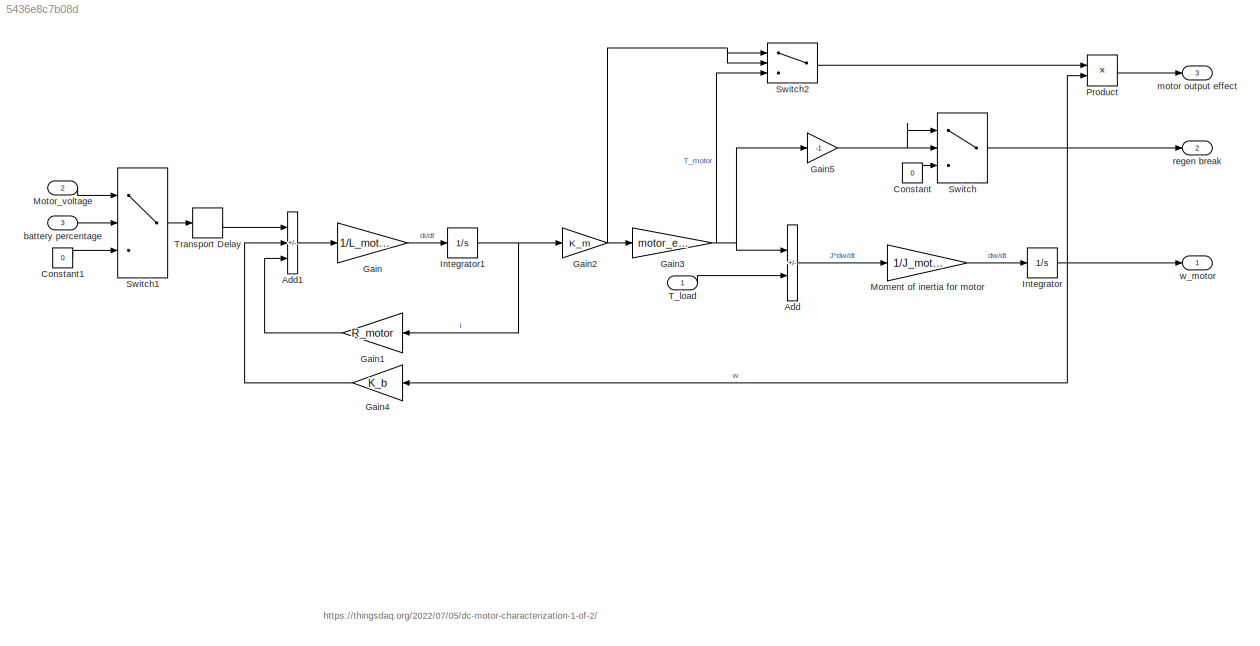
MODEL slx_5436e8c7b08d
KIND model
CONFIG AbsTol = auto
CONFIG EnableMultiTasking = off
CONFIG FixedStep = auto
CONFIG MaxStep = auto
CONFIG MinStep = auto
CONFIG RelTol = 1e-3
CONFIG SampleTimeConstraint = Unconstrained
CONFIG SolverName = VariableStepAuto
CONFIG StartTime = 0.0
CONFIG StopTime = 10.0
BLOCK [Sum] Add
  IconShape = rectangular
  Inputs = +-
BLOCK [Sum] Add1
  IconShape = rectangular
  Inputs = +--
BLOCK [Constant] Constant
  Value = 0
BLOCK [Constant] Constant1
  Value = 0
BLOCK [Gain] Gain
  Gain = 1/L_motor
BLOCK [Gain] Gain1
  Gain = R_motor
  NameLocation = top
BLOCK [Gain] Gain2
  Gain = K_m
BLOCK [Gain] Gain3
  Gain = motor_eff
BLOCK [Gain] Gain4
  Gain = K_b
  NameLocation = top
BLOCK [Gain] Gain5
  Gain = -1
BLOCK [Integrator] Integrator
  InitialCondition = velstart/R*drivetrain_gain
BLOCK [Integrator] Integrator1
BLOCK [Gain] Moment of inertia for motor
  Gain = 1/J_motor
BLOCK [Inport] Motor_voltage
  Port = 2
BLOCK [Product] Product
BLOCK [Switch] Switch
  Criteria = u2 > Threshold
  InputSameDT = off
  SaturateOnIntegerOverflow = off
BLOCK [Switch] Switch1
  Criteria = u2 > Threshold
  InputSameDT = off
  SaturateOnIntegerOverflow = off
BLOCK [Switch] Switch2
  Criteria = u2 > Threshold
  InputSameDT = off
  SaturateOnIntegerOverflow = off
BLOCK [Inport] T_load
BLOCK [TransportDelay] Transport Delay
  DelayTime = 20*10^(-3)
BLOCK [Inport] battery percentage
  Port = 3
BLOCK [Outport] motor output effect
  Port = 3
BLOCK [Outport] regen break
  Port = 2
BLOCK [Outport] w_motor
ANNOTATION (root): https://thingsdaq.org/2022/07/05/dc-motor-characterization-1-of-2/
LINE Add1:1 -> Gain:1
LINE Add:1 -> Moment of inertia for motor:1
LINE Constant1:1 -> Switch1:3
LINE Constant:1 -> Switch:3
LINE Gain1:1 -> Add1:3
NET Gain2:1 -> Gain3:1, Switch2:1, Switch2:2
NET Gain3:1 -> Add:1, Gain5:1, Switch2:3
LINE Gain4:1 -> Add1:2
NET Gain5:1 -> Switch:1, Switch:2
LINE Gain:1 -> Integrator1:1
NET Integrator1:1 -> Gain1:1, Gain2:1
NET Integrator:1 -> Gain4:1, Product:2, w_motor:1
LINE Moment of inertia for motor:1 -> Integrator:1
LINE Motor_voltage:1 -> Switch1:1
LINE Product:1 -> motor output effect:1
LINE Switch1:1 -> Transport Delay:1
LINE Switch2:1 -> Product:1
LINE Switch:1 -> regen break:1
LINE T_load:1 -> Add:2
LINE Transport Delay:1 -> Add1:1
LINE battery percentage:1 -> Switch1:2
note: NET lines group one-source signal fan-out (src -> all destinations, sorted); 1:1 wires keep LINE
